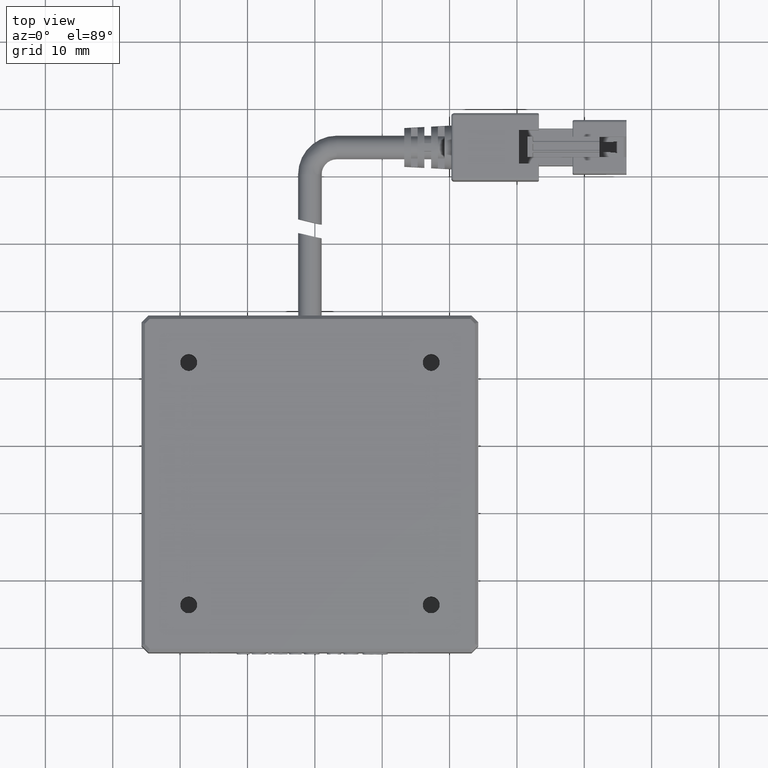
[diagram: clean part render]
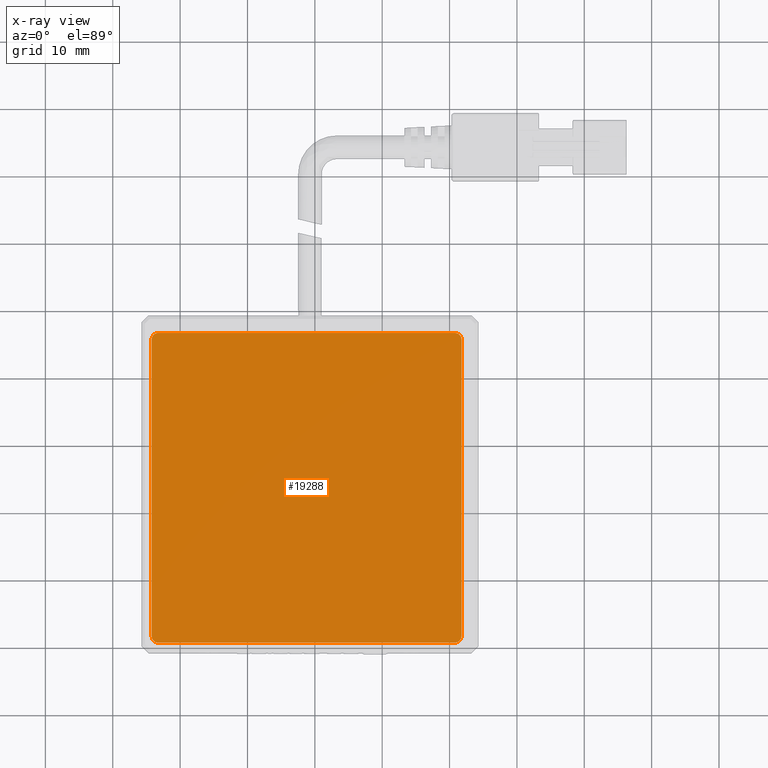
[diagram: x-ray — body ghosted, one internal face saturated and labeled with its STEP entity id]
A machine part, top view, then the same camera in x-ray: the body is ghosted and one INTERNAL B-rep face — a face not visible from any outside direction — is saturated and labeled: STEP entity #19288.
In plain terms, the highlighted planar face has unit normal (0, 0, -1).
Its self-contained STEP definition (entity closure, byte-faithful):
#61 = VERTEX_POINT ( 'NONE', #14980 ) ;
#102 = EDGE_CURVE ( 'NONE', #41732, #61, #22544, .T. ) ;
#1593 = AXIS2_PLACEMENT_3D ( 'NONE', #37664, #5428, #2147 ) ;
#1981 = CARTESIAN_POINT ( 'NONE',  ( -4.232974683544283900, -8.288860759493660500, -3.250000000000000900 ) ) ;
#2147 = DIRECTION ( 'NONE',  ( -1.000000000000000000, 0.0000000000000000000, 0.0000000000000000000 ) ) ;
#2581 = DIRECTION ( 'NONE',  ( -1.000000000000000000, 0.0000000000000000000, 0.0000000000000000000 ) ) ;
#4034 = CARTESIAN_POINT ( 'NONE',  ( 40.76702531645570800, 35.71113924050634100, -3.250000000000000900 ) ) ;
#4106 = CARTESIAN_POINT ( 'NONE',  ( 41.76702531645570100, -8.288860759493660500, -3.250000000000000900 ) ) ;
#5121 = DIRECTION ( 'NONE',  ( 0.0000000000000000000, 1.000000000000000000, 0.0000000000000000000 ) ) ;
#5428 = DIRECTION ( 'NONE',  ( -0.0000000000000000000, 0.0000000000000000000, 1.000000000000000000 ) ) ;
#5796 = AXIS2_PLACEMENT_3D ( 'NONE', #28498, #9096, #31782 ) ;
#6536 = EDGE_CURVE ( 'NONE', #13706, #29683, #21277, .T. ) ;
#7331 = DIRECTION ( 'NONE',  ( -1.000000000000000000, 0.0000000000000000000, 0.0000000000000000000 ) ) ;
#7503 = CARTESIAN_POINT ( 'NONE',  ( 40.76702531645570800, -9.288860759493662300, -3.250000000000000900 ) ) ;
#7507 = DIRECTION ( 'NONE',  ( 1.000000000000000000, 0.0000000000000000000, 0.0000000000000000000 ) ) ;
#7809 = LINE ( 'NONE', #24478, #32640 ) ;
#9096 = DIRECTION ( 'NONE',  ( -0.0000000000000000000, 0.0000000000000000000, 1.000000000000000000 ) ) ;
#9858 = CIRCLE ( 'NONE', #9913, 1.000000000000000900 ) ;
#9913 = AXIS2_PLACEMENT_3D ( 'NONE', #41512, #21933, #2581 ) ;
#10790 = VERTEX_POINT ( 'NONE', #22589 ) ;
#10860 = ORIENTED_EDGE ( 'NONE', *, *, #25729, .T. ) ;
#10952 = FACE_OUTER_BOUND ( 'NONE', #20984, .T. ) ;
#12432 = CARTESIAN_POINT ( 'NONE',  ( 40.76702531645570800, 36.71113924050634100, -3.250000000000000900 ) ) ;
#12655 = EDGE_CURVE ( 'NONE', #13308, #30413, #9858, .T. ) ;
#12946 = ORIENTED_EDGE ( 'NONE', *, *, #17748, .T. ) ;
#13308 = VERTEX_POINT ( 'NONE', #12432 ) ;
#13706 = VERTEX_POINT ( 'NONE', #7503 ) ;
#13731 = CARTESIAN_POINT ( 'NONE',  ( -3.232974683544290100, -9.288860759493662300, -3.250000000000000900 ) ) ;
#14705 = EDGE_CURVE ( 'NONE', #13706, #10790, #21735, .T. ) ;
#14980 = CARTESIAN_POINT ( 'NONE',  ( -4.232974683544283900, 35.71113924050634100, -3.250000000000000900 ) ) ;
#16082 = ORIENTED_EDGE ( 'NONE', *, *, #37625, .T. ) ;
#16139 = CARTESIAN_POINT ( 'NONE',  ( -3.232974683544290100, 36.71113924050634100, -3.250000000000000900 ) ) ;
#16468 = CARTESIAN_POINT ( 'NONE',  ( 40.76702531645570800, -8.288860759493660500, -3.250000000000000900 ) ) ;
#16982 = VERTEX_POINT ( 'NONE', #1981 ) ;
#17465 = LINE ( 'NONE', #40642, #29619 ) ;
#17748 = EDGE_CURVE ( 'NONE', #41732, #13308, #29475, .T. ) ;
#19288 = ADVANCED_FACE ( 'NONE', ( #10952 ), #23279, .T. ) ;
#19700 = DIRECTION ( 'NONE',  ( -1.000000000000000000, 0.0000000000000000000, 0.0000000000000000000 ) ) ;
#20245 = DIRECTION ( 'NONE',  ( -1.000000000000000000, 0.0000000000000000000, 0.0000000000000000000 ) ) ;
#20984 = EDGE_LOOP ( 'NONE', ( #30141, #12946, #21032, #10860, #21167, #28150, #36954, #16082 ) ) ;
#21032 = ORIENTED_EDGE ( 'NONE', *, *, #12655, .T. ) ;
#21167 = ORIENTED_EDGE ( 'NONE', *, *, #6536, .F. ) ;
#21277 = CIRCLE ( 'NONE', #34237, 1.000000000000000900 ) ;
#21735 = LINE ( 'NONE', #13731, #30388 ) ;
#21933 = DIRECTION ( 'NONE',  ( 0.0000000000000000000, -0.0000000000000000000, -1.000000000000000000 ) ) ;
#22544 = CIRCLE ( 'NONE', #1593, 0.9999999999999974500 ) ;
#22589 = CARTESIAN_POINT ( 'NONE',  ( -3.232974683544290100, -9.288860759493662300, -3.250000000000000900 ) ) ;
#22835 = EDGE_CURVE ( 'NONE', #16982, #10790, #32360, .T. ) ;
#23279 = PLANE ( 'NONE',  #28483 ) ;
#24478 = CARTESIAN_POINT ( 'NONE',  ( -4.232974683544283900, 35.71113924050634100, -3.250000000000000900 ) ) ;
#25729 = EDGE_CURVE ( 'NONE', #30413, #29683, #17465, .T. ) ;
#26658 = DIRECTION ( 'NONE',  ( 0.0000000000000000000, 0.0000000000000000000, -1.000000000000000000 ) ) ;
#28150 = ORIENTED_EDGE ( 'NONE', *, *, #14705, .T. ) ;
#28483 = AXIS2_PLACEMENT_3D ( 'NONE', #4034, #26658, #7331 ) ;
#28498 = CARTESIAN_POINT ( 'NONE',  ( -3.232974683544290100, -8.288860759493660500, -3.250000000000000900 ) ) ;
#29475 = LINE ( 'NONE', #30101, #38146 ) ;
#29619 = VECTOR ( 'NONE', #37453, 1000.000000000000000 ) ;
#29683 = VERTEX_POINT ( 'NONE', #4106 ) ;
#30101 = CARTESIAN_POINT ( 'NONE',  ( -3.232974683544290100, 36.71113924050634100, -3.250000000000000900 ) ) ;
#30141 = ORIENTED_EDGE ( 'NONE', *, *, #102, .F. ) ;
#30388 = VECTOR ( 'NONE', #20245, 1000.000000000000000 ) ;
#30413 = VERTEX_POINT ( 'NONE', #32387 ) ;
#31782 = DIRECTION ( 'NONE',  ( -1.000000000000000000, 0.0000000000000000000, 0.0000000000000000000 ) ) ;
#32360 = CIRCLE ( 'NONE', #5796, 0.9999999999999974500 ) ;
#32387 = CARTESIAN_POINT ( 'NONE',  ( 41.76702531645570100, 35.71113924050634100, -3.250000000000000900 ) ) ;
#32640 = VECTOR ( 'NONE', #5121, 1000.000000000000000 ) ;
#34237 = AXIS2_PLACEMENT_3D ( 'NONE', #16468, #39140, #19700 ) ;
#36954 = ORIENTED_EDGE ( 'NONE', *, *, #22835, .F. ) ;
#37453 = DIRECTION ( 'NONE',  ( -0.0000000000000000000, -1.000000000000000000, -0.0000000000000000000 ) ) ;
#37625 = EDGE_CURVE ( 'NONE', #16982, #61, #7809, .T. ) ;
#37664 = CARTESIAN_POINT ( 'NONE',  ( -3.232974683544290100, 35.71113924050634100, -3.250000000000000900 ) ) ;
#38146 = VECTOR ( 'NONE', #7507, 1000.000000000000000 ) ;
#39140 = DIRECTION ( 'NONE',  ( -0.0000000000000000000, 0.0000000000000000000, 1.000000000000000000 ) ) ;
#40642 = CARTESIAN_POINT ( 'NONE',  ( 41.76702531645570100, 35.71113924050634100, -3.250000000000000900 ) ) ;
#41512 = CARTESIAN_POINT ( 'NONE',  ( 40.76702531645570800, 35.71113924050634100, -3.250000000000000900 ) ) ;
#41732 = VERTEX_POINT ( 'NONE', #16139 ) ;